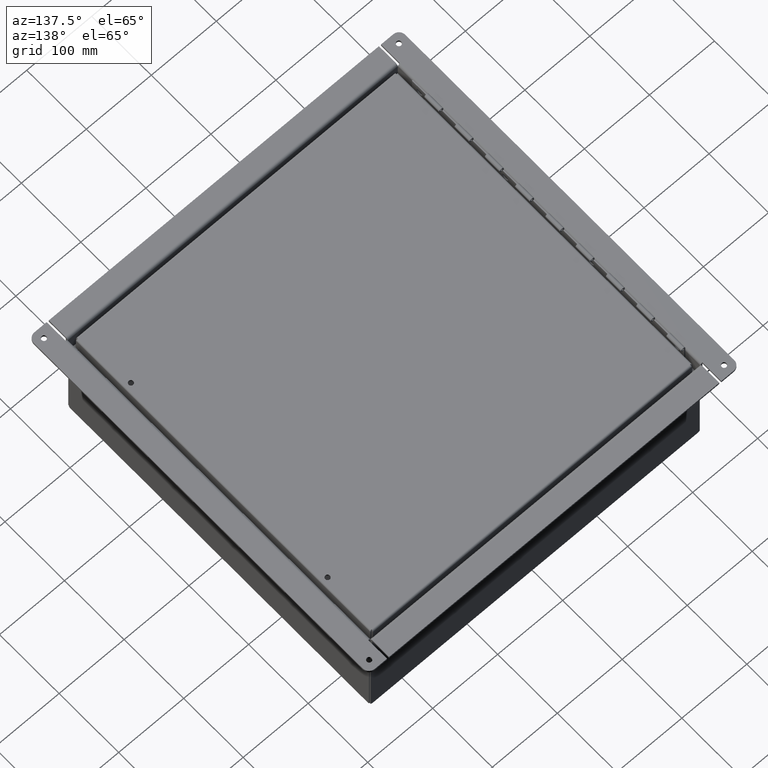
[diagram: clean part render]
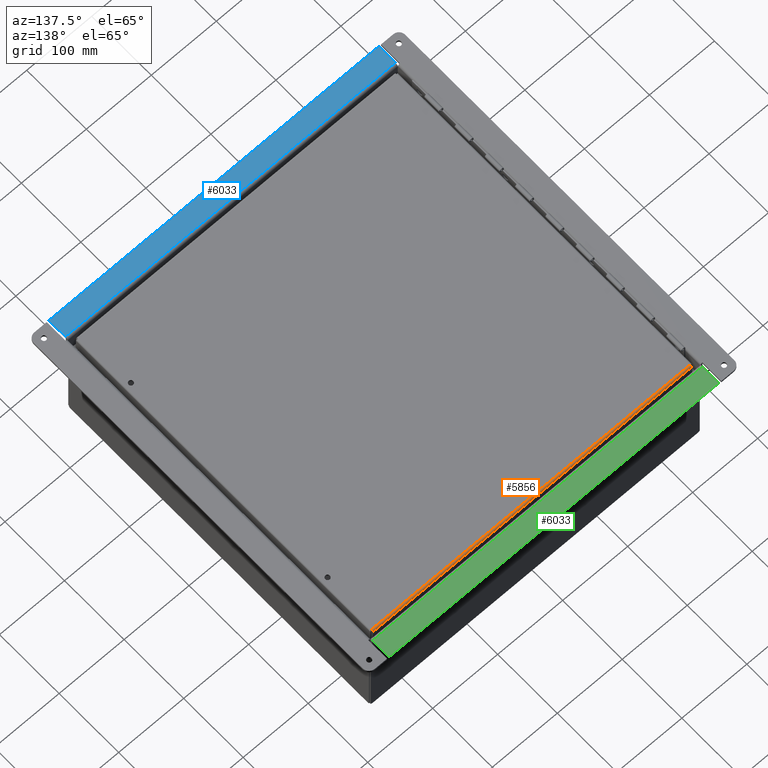
[diagram: same view with three faces highlighted in distinct colors, each labeled with its STEP entity id]
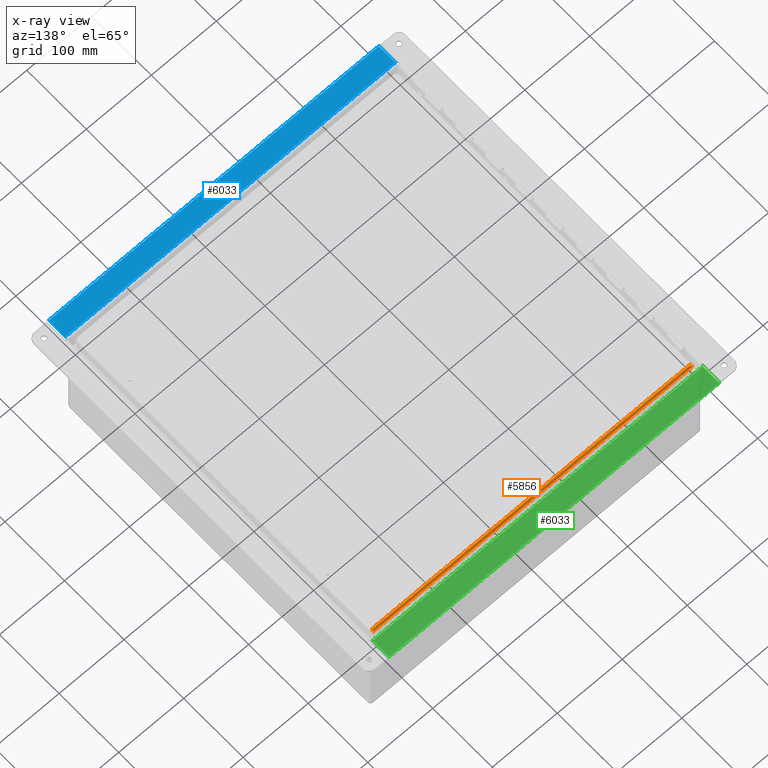
[diagram: x-ray of the same camera — body ghosted, the three highlighted faces saturated]
A machine part, auxiliary view with three faces highlighted in distinct colors.
The next image is the same camera in x-ray (body ghosted, the three faces saturated) — at least one of them is partly hidden behind the body in this view.
Their STEP definitions:

[orange] entity #5856 — the highlighted cylindrical surface (edge-blend (fillet) strip) has radius 2.6733 mm, axis along (-1, -0, 0).
#344=B_SPLINE_CURVE_WITH_KNOTS($,3,(#9832,#9833,#9834,#9835,#9836,#9837,
#9838),.UNSPECIFIED.,.F.,.F.,(4,3,4),(0.,0.673198425769249,1.57079632679487),
 .UNSPECIFIED.);
#345=B_SPLINE_CURVE_WITH_KNOTS($,3,(#9841,#9842,#9843,#9844,#9845,#9846,
#9847),.UNSPECIFIED.,.F.,.F.,(4,3,4),(0.,0.897597901025639,1.57079632679484),
 .UNSPECIFIED.);
#758=FACE_OUTER_BOUND($,#1107,.T.);
#1107=EDGE_LOOP($,(#4399,#4400,#4401,#4402));
#1619=LINE($,#9830,#2167);
#1620=LINE($,#9840,#2168);
#2167=VECTOR($,#7181,19.3299029130879);
#2168=VECTOR($,#7182,19.2895);
#2663=VERTEX_POINT($,#9828);
#2664=VERTEX_POINT($,#9829);
#2665=VERTEX_POINT($,#9831);
#2666=VERTEX_POINT($,#9839);
#3279=EDGE_CURVE($,#2663,#2664,#1619,.T.);
#3280=EDGE_CURVE($,#2665,#2663,#344,.T.);
#3281=EDGE_CURVE($,#2666,#2665,#1620,.T.);
#3282=EDGE_CURVE($,#2664,#2666,#345,.T.);
#4399=ORIENTED_EDGE($,*,*,#3279,.F.);
#4400=ORIENTED_EDGE($,*,*,#3280,.F.);
#4401=ORIENTED_EDGE($,*,*,#3281,.F.);
#4402=ORIENTED_EDGE($,*,*,#3282,.F.);
#5305=CYLINDRICAL_SURFACE($,#6251,0.10525);
#5856=ADVANCED_FACE($,(#758),#5305,.T.);
#6251=AXIS2_PLACEMENT_3D($,#9827,#7179,#7180);
#7179=DIRECTION('center_axis',(-1.,-2.86914086719201E-016,0.));
#7180=DIRECTION('ref_axis',(0.,0.,1.));
#7181=DIRECTION($,(1.,2.863066820339E-016,1.39893842610515E-032));
#7182=DIRECTION($,(-1.,-2.90045086239893E-016,0.));
#9827=CARTESIAN_POINT('Origin',(-1.3987061727561E-015,9.70724999999999,
-0.0312499999999996));
#9828=CARTESIAN_POINT('',(-9.66495145654395,9.81249999999999,-0.031250000000001));
#9829=CARTESIAN_POINT('',(9.66495145654396,9.8125,-0.0312499999999995));
#9830=CARTESIAN_POINT($,(-3.34790935356117E-016,9.81249999999999,-0.0312500000000023));
#9831=CARTESIAN_POINT('',(-9.64475,9.70724999999999,0.074));
#9832=CARTESIAN_POINT('Ctrl Pts',(-9.64475,9.70724999999999,0.074));
#9833=CARTESIAN_POINT('Ctrl Pts',(-9.64763592236342,9.73086804477073,0.074));
#9834=CARTESIAN_POINT('Ctrl Pts',(-9.65052184472685,9.75451542254503,0.0657423812059104));
#9835=CARTESIAN_POINT('Ctrl Pts',(-9.65340776709027,9.77288724379979,0.0510150996893844));
#9836=CARTESIAN_POINT('Ctrl Pts',(-9.65725566357483,9.79738300547281,0.0313787243340174));
#9837=CARTESIAN_POINT('Ctrl Pts',(-9.66110356005939,9.81249999999999,0.000240726360986899));
#9838=CARTESIAN_POINT('Ctrl Pts',(-9.66495145654395,9.81249999999999,-0.0312499999999946));
#9839=CARTESIAN_POINT('',(9.64475,9.70725,0.074));
#9840=CARTESIAN_POINT($,(4.822375,9.70725,0.074));
#9841=CARTESIAN_POINT('Ctrl Pts',(9.66495145654396,9.8125,-0.031249999999996));
#9842=CARTESIAN_POINT('Ctrl Pts',(9.6611035600594,9.8125,0.000240726360986014));
#9843=CARTESIAN_POINT('Ctrl Pts',(9.65725566357483,9.79738300547282,0.0313787243340171));
#9844=CARTESIAN_POINT('Ctrl Pts',(9.65340776709026,9.7728872437998,0.0510150996893846));
#9845=CARTESIAN_POINT('Ctrl Pts',(9.65052184472684,9.75451542254503,0.0657423812059096));
#9846=CARTESIAN_POINT('Ctrl Pts',(9.64763592236342,9.73086804477073,0.0739999999999993));
#9847=CARTESIAN_POINT('Ctrl Pts',(9.64475,9.70725,0.074));

[blue] entity #6033 — the highlighted planar face has unit normal (0, -0, 1).
#596=PLANE($,#6508);
#927=FACE_OUTER_BOUND($,#1323,.T.);
#1323=EDGE_LOOP($,(#5147,#5148,#5149,#5150));
#1880=LINE($,#10829,#2428);
#1895=LINE($,#10865,#2443);
#1898=LINE($,#10871,#2446);
#1899=LINE($,#10872,#2447);
#2428=VECTOR($,#7930,20.);
#2443=VECTOR($,#7969,1.09375);
#2446=VECTOR($,#7974,1.09375);
#2447=VECTOR($,#7975,20.);
#2885=VERTEX_POINT($,#10826);
#2886=VERTEX_POINT($,#10828);
#2895=VERTEX_POINT($,#10864);
#2897=VERTEX_POINT($,#10870);
#3633=EDGE_CURVE($,#2886,#2885,#1880,.T.);
#3651=EDGE_CURVE($,#2886,#2895,#1895,.T.);
#3654=EDGE_CURVE($,#2897,#2885,#1898,.T.);
#3655=EDGE_CURVE($,#2895,#2897,#1899,.T.);
#5147=ORIENTED_EDGE($,*,*,#3633,.T.);
#5148=ORIENTED_EDGE($,*,*,#3654,.F.);
#5149=ORIENTED_EDGE($,*,*,#3655,.F.);
#5150=ORIENTED_EDGE($,*,*,#3651,.F.);
#6033=ADVANCED_FACE($,(#927),#596,.T.);
#6508=AXIS2_PLACEMENT_3D($,#10869,#7972,#7973);
#7930=DIRECTION($,(1.83580185174239E-016,-1.,0.));
#7969=DIRECTION($,(1.,0.,0.));
#7972=DIRECTION('center_axis',(0.,0.,1.));
#7973=DIRECTION('ref_axis',(1.,0.,0.));
#7974=DIRECTION($,(-1.,0.,0.));
#7975=DIRECTION($,(3.05966975290398E-016,-1.,0.));
#10826=CARTESIAN_POINT('',(-0.531249999999999,-10.,0.125));
#10828=CARTESIAN_POINT('',(-0.531250000000002,9.99999999999999,0.125));
#10829=CARTESIAN_POINT($,(-0.531250000000001,4.99999999999999,0.125));
#10864=CARTESIAN_POINT('',(0.562499999999998,9.99999999999999,0.125));
#10865=CARTESIAN_POINT($,(-0.562500000000002,9.99999999999999,0.125));
#10869=CARTESIAN_POINT('Origin',(1.31128703695885E-016,-1.05735302227074E-014,
0.125));
#10870=CARTESIAN_POINT('',(0.562500000000004,-10.,0.125));
#10871=CARTESIAN_POINT($,(0.562500000000004,-10.,0.125));
#10872=CARTESIAN_POINT($,(0.562499999999998,9.99999999999999,0.125));

[green] entity #6033 — the highlighted planar face has unit normal (0, 0, 1).
#596=PLANE($,#6508);
#927=FACE_OUTER_BOUND($,#1323,.T.);
#1323=EDGE_LOOP($,(#5147,#5148,#5149,#5150));
#1880=LINE($,#10829,#2428);
#1895=LINE($,#10865,#2443);
#1898=LINE($,#10871,#2446);
#1899=LINE($,#10872,#2447);
#2428=VECTOR($,#7930,20.);
#2443=VECTOR($,#7969,1.09375);
#2446=VECTOR($,#7974,1.09375);
#2447=VECTOR($,#7975,20.);
#2885=VERTEX_POINT($,#10826);
#2886=VERTEX_POINT($,#10828);
#2895=VERTEX_POINT($,#10864);
#2897=VERTEX_POINT($,#10870);
#3633=EDGE_CURVE($,#2886,#2885,#1880,.T.);
#3651=EDGE_CURVE($,#2886,#2895,#1895,.T.);
#3654=EDGE_CURVE($,#2897,#2885,#1898,.T.);
#3655=EDGE_CURVE($,#2895,#2897,#1899,.T.);
#5147=ORIENTED_EDGE($,*,*,#3633,.T.);
#5148=ORIENTED_EDGE($,*,*,#3654,.F.);
#5149=ORIENTED_EDGE($,*,*,#3655,.F.);
#5150=ORIENTED_EDGE($,*,*,#3651,.F.);
#6033=ADVANCED_FACE($,(#927),#596,.T.);
#6508=AXIS2_PLACEMENT_3D($,#10869,#7972,#7973);
#7930=DIRECTION($,(1.83580185174239E-016,-1.,0.));
#7969=DIRECTION($,(1.,0.,0.));
#7972=DIRECTION('center_axis',(0.,0.,1.));
#7973=DIRECTION('ref_axis',(1.,0.,0.));
#7974=DIRECTION($,(-1.,0.,0.));
#7975=DIRECTION($,(3.05966975290398E-016,-1.,0.));
#10826=CARTESIAN_POINT('',(-0.531249999999999,-10.,0.125));
#10828=CARTESIAN_POINT('',(-0.531250000000002,9.99999999999999,0.125));
#10829=CARTESIAN_POINT($,(-0.531250000000001,4.99999999999999,0.125));
#10864=CARTESIAN_POINT('',(0.562499999999998,9.99999999999999,0.125));
#10865=CARTESIAN_POINT($,(-0.562500000000002,9.99999999999999,0.125));
#10869=CARTESIAN_POINT('Origin',(1.31128703695885E-016,-1.05735302227074E-014,
0.125));
#10870=CARTESIAN_POINT('',(0.562500000000004,-10.,0.125));
#10871=CARTESIAN_POINT($,(0.562500000000004,-10.,0.125));
#10872=CARTESIAN_POINT($,(0.562499999999998,9.99999999999999,0.125));